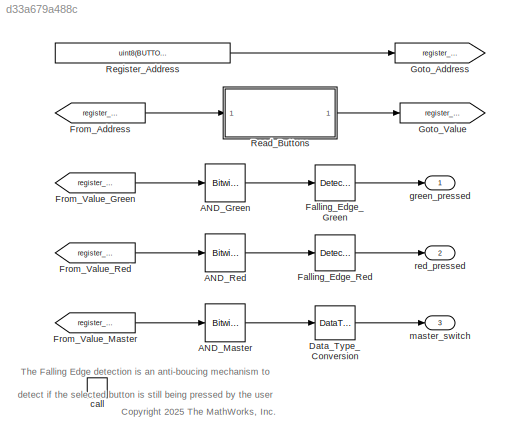
MODEL slx_d33a679a488c
KIND model
CONFIG AbsTol = auto
CONFIG EnableMultiTasking = off
CONFIG FixedStep = auto
CONFIG MaxStep = auto
CONFIG MinStep = auto
CONFIG RelTol = 1e-3
CONFIG SampleTimeConstraint = STIndependent
CONFIG SolverName = FixedStepAuto
CONFIG StartTime = 0.0
CONFIG StopTime = Inf
BLOCK [Reference] AND_Green  REF=simulink/Logic and Bit
Operations/Bitwise
Operator
  SourceBlock = simulink/Logic and Bit\nOperations/Bitwise\nOperator
  SourceType = Bitwise Operator
BLOCK [Reference] AND_Master  REF=simulink/Logic and Bit
Operations/Bitwise
Operator
  SourceBlock = simulink/Logic and Bit\nOperations/Bitwise\nOperator
  SourceType = Bitwise Operator
BLOCK [Reference] AND_Red  REF=simulink/Logic and Bit
Operations/Bitwise
Operator
  SourceBlock = simulink/Logic and Bit\nOperations/Bitwise\nOperator
  SourceType = Bitwise Operator
BLOCK [DataTypeConversion] Data_Type_Conversion
  OutDataTypeStr = boolean
  RndMeth = Floor
  SaturateOnIntegerOverflow = off
BLOCK [Reference] Falling_Edge_Green  REF=simulink/Logic and Bit
Operations/Detect
Decrease
  SourceBlock = simulink/Logic and Bit\nOperations/Detect\nDecrease
  SourceType = Detect Decrease
BLOCK [Reference] Falling_Edge_Red  REF=simulink/Logic and Bit
Operations/Detect
Decrease
  SourceBlock = simulink/Logic and Bit\nOperations/Detect\nDecrease
  SourceType = Detect Decrease
BLOCK [From] From_Address
  GotoTag = register_address
BLOCK [From] From_Value_Green
  GotoTag = register_value
BLOCK [From] From_Value_Master
  GotoTag = register_value
BLOCK [From] From_Value_Red
  GotoTag = register_value
BLOCK [Goto] Goto_Address
  GotoTag = register_address
BLOCK [Goto] Goto_Value
  GotoTag = register_value
BLOCK [ModelReference] Read_Buttons
  ModelNameDialog = ReadRegister.slx
  ModelReferenceVersion = 11.3
BLOCK [Constant] Register_Address
  SampleTime = -1
  Value = uint8(BUTTONS_REGISTER)
BLOCK [TriggerPort] call
  PortDimensions = 1
  StatesWhenEnabling = held
  TriggerSignalSampleTime = [0.001,0]
  TriggerType = function-call
  VariantControl = Variant
BLOCK [Outport] green_pressed
  OutDataTypeStr = boolean
  PortDimensions = 1
  SamplingMode = Sample based
  SignalType = real
  VectorParamsAs1DForOutWhenUnconnected = off
BLOCK [Outport] master_switch
  OutDataTypeStr = boolean
  Port = 3
  PortDimensions = 1
  SamplingMode = Sample based
  SignalType = real
  VectorParamsAs1DForOutWhenUnconnected = off
BLOCK [Outport] red_pressed
  OutDataTypeStr = boolean
  Port = 2
  PortDimensions = 1
  SamplingMode = Sample based
  SignalType = real
  VectorParamsAs1DForOutWhenUnconnected = off
ANNOTATION (root): <copyright redacted>
ANNOTATION (root): The Falling Edge detection is an anti-boucing mechanism to detect if the selected button is still being pressed by the user
LINE AND_Green:1 -> Falling_Edge_Green:1
LINE AND_Master:1 -> Data_Type_Conversion:1
LINE AND_Red:1 -> Falling_Edge_Red:1
LINE Data_Type_Conversion:1 -> master_switch:1
LINE Falling_Edge_Green:1 -> green_pressed:1
LINE Falling_Edge_Red:1 -> red_pressed:1
LINE From_Address:1 -> Read_Buttons:1
LINE From_Value_Green:1 -> AND_Green:1
LINE From_Value_Master:1 -> AND_Master:1
LINE From_Value_Red:1 -> AND_Red:1
LINE Read_Buttons:1 -> Goto_Value:1
LINE Register_Address:1 -> Goto_Address:1
